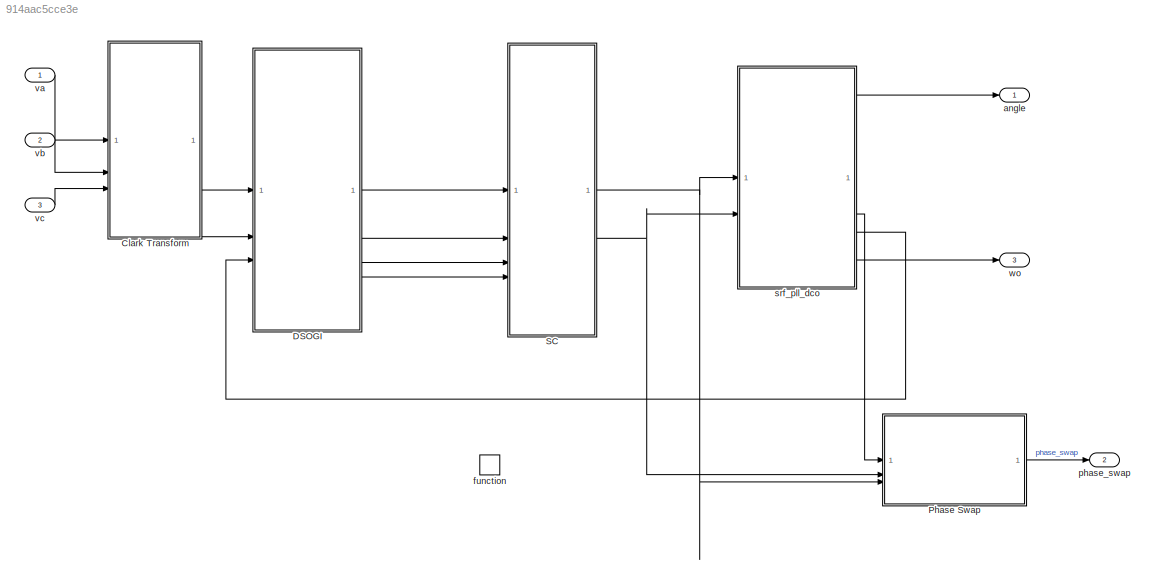
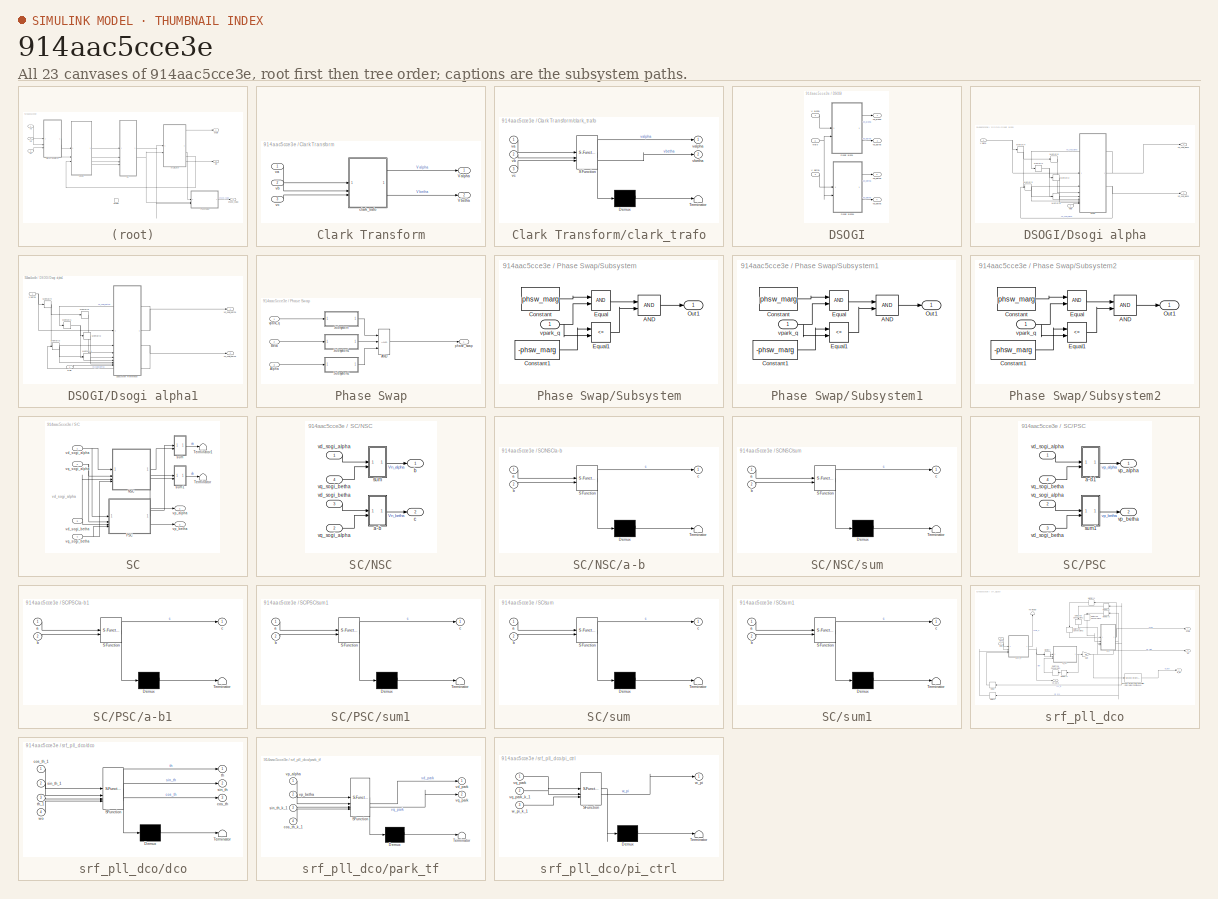
[diagram: thumbnail index - all 23 canvases of the model, root first then tree order]
MODEL slx_914aac5cce3e
KIND model
CONFIG AbsTol = auto
CONFIG EnableMultiTasking = off
CONFIG FixedStep = ts/40
CONFIG InitFcn = ts=1/10e3;\nvolts=230*sqrt(2)*3.3/700;\nfreq=2*pi*50;\nphase=pi;\n\nwn_pi=80*2*pi;%200*2*pi; \nsig_pi=.07;%.05;\nvac_peak_pi=230*sqrt(2)*3.3/350;\nkp =2*wn_pi*sig_pi/vac_peak_pi;\nki = vac_peak_pi/(4*sig_pi*sig_pi);\nsig=2.5;\nwn=2*pi*100;\nKg=1.2;\n\nphsw_marg=.1;\nts_phsw=1/66;
CONFIG MaxStep = auto
CONFIG MinStep = auto
CONFIG RelTol = 1e-3
CONFIG SampleTimeConstraint = Unconstrained
CONFIG SolverName = ode1be
CONFIG StartTime = 0.0
CONFIG StopTime = 10/50
BLOCK [SubSystem] Clark Transform
  SystemSampleTime = ts
BLOCK [Outport] Clark Transform/V alpha
BLOCK [Outport] Clark Transform/V betha
  Port = 2
BLOCK [SubSystem] Clark Transform/clark_trafo
  ErrorFcn = Stateflow.Translate.translate
  LibrarySourceBlock = simulink/User-Defined\nFunctions/MATLAB Function
  PermitHierarchicalResolution = ExplicitOnly
  SFBlockType = MATLAB Function
  TreatAsAtomicUnit = on
BLOCK [Demux] Clark Transform/clark_trafo/ Demux 
  Outputs = 1
BLOCK [S-Function] Clark Transform/clark_trafo/ SFunction 
  EnableBusSupport = on
  FunctionName = sf_sfun
  PortCounts = [3 3]
  SFcnIsStateOwnerBlock = off
  SFunctionDeploymentMode = off
  Tag = Stateflow S-Function 10
BLOCK [Terminator] Clark Transform/clark_trafo/ Terminator 
BLOCK [Inport] Clark Transform/clark_trafo/va
BLOCK [Outport] Clark Transform/clark_trafo/valpha
BLOCK [Inport] Clark Transform/clark_trafo/vb
  Port = 2
BLOCK [Outport] Clark Transform/clark_trafo/vbetha
  Port = 2
BLOCK [Inport] Clark Transform/clark_trafo/vc
  Port = 3
BLOCK [Inport] Clark Transform/va
  OutDataTypeStr = double
BLOCK [Inport] Clark Transform/vb
  OutDataTypeStr = double
  Port = 2
BLOCK [Inport] Clark Transform/vc
  OutDataTypeStr = double
  Port = 3
BLOCK [SubSystem] DSOGI
  SystemSampleTime = ts
BLOCK [SubSystem] DSOGI/Dsogi alpha
BLOCK [Memory] DSOGI/Dsogi alpha/Memory1
  InheritSampleTime = on
BLOCK [Memory] DSOGI/Dsogi alpha/Memory2
  InheritSampleTime = on
BLOCK [Memory] DSOGI/Dsogi alpha/Memory3
  InheritSampleTime = on
BLOCK [Memory] DSOGI/Dsogi alpha/Memory4
  InheritSampleTime = on
BLOCK [Memory] DSOGI/Dsogi alpha/Memory6
  InheritSampleTime = on
BLOCK [Memory] DSOGI/Dsogi alpha/Memory8
  InheritSampleTime = on
BLOCK [Inport] DSOGI/Dsogi alpha/V alpha
  OutDataTypeStr = double
  OutMax = [1.6]
  OutMin = [-1.6]
BLOCK [SubSystem] DSOGI/Dsogi alpha/dsogi
  ReferencedSubsystem = dsogi
BLOCK [Outport] DSOGI/Dsogi alpha/vd_sogi_alpha
  OutMax = [1.6]
  OutMin = [-1.6]
BLOCK [Outport] DSOGI/Dsogi alpha/vq_sogi_alpha
  OutMax = [1.6]
  OutMin = [-1.6]
  Port = 2
BLOCK [Inport] DSOGI/Dsogi alpha/wolp
  OutDataTypeStr = double
  OutMax = [2*pi*65]
  OutMin = [2*pi*45]
  Port = 2
BLOCK [SubSystem] DSOGI/Dsogi alpha1
BLOCK [Memory] DSOGI/Dsogi alpha1/Memory1
  InheritSampleTime = on
BLOCK [Memory] DSOGI/Dsogi alpha1/Memory2
  InheritSampleTime = on
BLOCK [Memory] DSOGI/Dsogi alpha1/Memory3
  InheritSampleTime = on
BLOCK [Memory] DSOGI/Dsogi alpha1/Memory4
  InheritSampleTime = on
BLOCK [Memory] DSOGI/Dsogi alpha1/Memory6
  InheritSampleTime = on
BLOCK [Memory] DSOGI/Dsogi alpha1/Memory8
  InheritSampleTime = on
BLOCK [SubSystem] DSOGI/Dsogi alpha1/Subsystem Reference
  ReferencedSubsystem = dsogi
BLOCK [Inport] DSOGI/Dsogi alpha1/V betha
  OutDataTypeStr = double
  OutMax = [1.6]
  OutMin = [-1.6]
BLOCK [Outport] DSOGI/Dsogi alpha1/vd_sogi_betha
  OutMax = [1.6]
  OutMin = [-1.6]
BLOCK [Outport] DSOGI/Dsogi alpha1/vq_sogi_betha
  OutMax = [1.6]
  OutMin = [-1.6]
  Port = 2
BLOCK [Inport] DSOGI/Dsogi alpha1/wolp
  OutDataTypeStr = double
  OutMax = [2*pi*65]
  OutMin = [2*pi*45]
  Port = 2
BLOCK [Inport] DSOGI/V alpha
  OutDataTypeStr = double
BLOCK [Inport] DSOGI/V betha
  OutDataTypeStr = double
  Port = 2
BLOCK [Outport] DSOGI/vd_alpha
BLOCK [Outport] DSOGI/vd_betha
  Port = 3
BLOCK [Outport] DSOGI/vq_aplha
  Port = 2
BLOCK [Outport] DSOGI/vq_betha
  Port = 4
BLOCK [Inport] DSOGI/wolp
  OutDataTypeStr = double
  Port = 3
BLOCK [SubSystem] Phase Swap
BLOCK [Logic] Phase Swap/AND
  AllPortsSameDT = off
  IconShape = distinctive
  Inputs = 3
  OutDataTypeStr = boolean
BLOCK [Inport] Phase Swap/Alpha
  OutDataTypeStr = double
  Port = 3
BLOCK [Inport] Phase Swap/Beta
  OutDataTypeStr = double
  Port = 2
BLOCK [SubSystem] Phase Swap/Subsystem
BLOCK [Logic] Phase Swap/Subsystem/AND
  AllPortsSameDT = off
  IconShape = distinctive
  OutDataTypeStr = boolean
BLOCK [Constant] Phase Swap/Subsystem/Constant
  OutDataTypeStr = double
  Value = phsw_marg
BLOCK [Constant] Phase Swap/Subsystem/Constant1
  OutDataTypeStr = double
  Value = -phsw_marg
BLOCK [RelationalOperator] Phase Swap/Subsystem/Equal
  InputSameDT = off
  OutDataTypeStr = boolean
  RndMeth = Simplest
BLOCK [RelationalOperator] Phase Swap/Subsystem/Equal1
  InputSameDT = off
  Operator = <=
  OutDataTypeStr = boolean
  RndMeth = Simplest
BLOCK [Outport] Phase Swap/Subsystem/Out1
BLOCK [Inport] Phase Swap/Subsystem/vpark_q
  OutDataTypeStr = double
BLOCK [SubSystem] Phase Swap/Subsystem1
BLOCK [Logic] Phase Swap/Subsystem1/AND
  AllPortsSameDT = off
  IconShape = distinctive
  OutDataTypeStr = boolean
BLOCK [Constant] Phase Swap/Subsystem1/Constant
  OutDataTypeStr = double
  Value = phsw_marg
BLOCK [Constant] Phase Swap/Subsystem1/Constant1
  OutDataTypeStr = double
  Value = -phsw_marg
BLOCK [RelationalOperator] Phase Swap/Subsystem1/Equal
  InputSameDT = off
  OutDataTypeStr = boolean
  RndMeth = Simplest
BLOCK [RelationalOperator] Phase Swap/Subsystem1/Equal1
  InputSameDT = off
  Operator = <=
  OutDataTypeStr = boolean
  RndMeth = Simplest
BLOCK [Outport] Phase Swap/Subsystem1/Out1
BLOCK [Inport] Phase Swap/Subsystem1/vpark_q
  OutDataTypeStr = double
BLOCK [SubSystem] Phase Swap/Subsystem2
BLOCK [Logic] Phase Swap/Subsystem2/AND
  AllPortsSameDT = off
  IconShape = distinctive
  OutDataTypeStr = boolean
BLOCK [Constant] Phase Swap/Subsystem2/Constant
  OutDataTypeStr = double
  Value = phsw_marg
BLOCK [Constant] Phase Swap/Subsystem2/Constant1
  OutDataTypeStr = double
  Value = -phsw_marg
BLOCK [RelationalOperator] Phase Swap/Subsystem2/Equal
  InputSameDT = off
  OutDataTypeStr = boolean
  RndMeth = Simplest
BLOCK [RelationalOperator] Phase Swap/Subsystem2/Equal1
  InputSameDT = off
  Operator = <=
  OutDataTypeStr = boolean
  RndMeth = Simplest
BLOCK [Outport] Phase Swap/Subsystem2/Out1
BLOCK [Inport] Phase Swap/Subsystem2/vpark_q
  OutDataTypeStr = double
BLOCK [Outport] Phase Swap/phase_swap 
BLOCK [Inport] Phase Swap/vpark_q
  OutDataTypeStr = double
BLOCK [SubSystem] SC
  SystemSampleTime = ts
BLOCK [SubSystem] SC/NSC
BLOCK [SubSystem] SC/NSC/a-b
  ErrorFcn = Stateflow.Translate.translate
  LibrarySourceBlock = simulink/User-Defined\nFunctions/MATLAB Function
  PermitHierarchicalResolution = ExplicitOnly
  SFBlockType = MATLAB Function
  TreatAsAtomicUnit = on
  VariantControl = false()
BLOCK [Demux] SC/NSC/a-b/ Demux 
  Outputs = 1
BLOCK [S-Function] SC/NSC/a-b/ SFunction 
  EnableBusSupport = on
  FunctionName = sf_sfun
  PortCounts = [2 2]
  SFcnIsStateOwnerBlock = off
  SFunctionDeploymentMode = off
  Tag = Stateflow S-Function 17
BLOCK [Terminator] SC/NSC/a-b/ Terminator 
BLOCK [Inport] SC/NSC/a-b/a
BLOCK [Inport] SC/NSC/a-b/b
  Port = 2
BLOCK [Outport] SC/NSC/a-b/c
BLOCK [Outport] SC/NSC/b
BLOCK [Outport] SC/NSC/c
  Port = 2
BLOCK [SubSystem] SC/NSC/sum
  ErrorFcn = Stateflow.Translate.translate
  LibrarySourceBlock = simulink/User-Defined\nFunctions/MATLAB Function
  PermitHierarchicalResolution = ExplicitOnly
  SFBlockType = MATLAB Function
  TreatAsAtomicUnit = on
  VariantControl = false()
BLOCK [Demux] SC/NSC/sum/ Demux 
  Outputs = 1
BLOCK [S-Function] SC/NSC/sum/ SFunction 
  EnableBusSupport = on
  FunctionName = sf_sfun
  PortCounts = [2 2]
  SFcnIsStateOwnerBlock = off
  SFunctionDeploymentMode = off
  Tag = Stateflow S-Function 18
BLOCK [Terminator] SC/NSC/sum/ Terminator 
BLOCK [Inport] SC/NSC/sum/a
BLOCK [Inport] SC/NSC/sum/b
  Port = 2
BLOCK [Outport] SC/NSC/sum/c
BLOCK [Inport] SC/NSC/vd_sogi_alpha
  OutDataTypeStr = double
BLOCK [Inport] SC/NSC/vd_sogi_betha
  OutDataTypeStr = double
  Port = 3
BLOCK [Inport] SC/NSC/vq_sogi_alpha
  OutDataTypeStr = double
  Port = 2
BLOCK [Inport] SC/NSC/vq_sogi_betha
  OutDataTypeStr = double
  Port = 4
BLOCK [SubSystem] SC/PSC
BLOCK [SubSystem] SC/PSC/a-b1
  ErrorFcn = Stateflow.Translate.translate
  LibrarySourceBlock = simulink/User-Defined\nFunctions/MATLAB Function
  PermitHierarchicalResolution = ExplicitOnly
  SFBlockType = MATLAB Function
  TreatAsAtomicUnit = on
  VariantControl = false()
BLOCK [Demux] SC/PSC/a-b1/ Demux 
  Outputs = 1
BLOCK [S-Function] SC/PSC/a-b1/ SFunction 
  EnableBusSupport = on
  FunctionName = sf_sfun
  PortCounts = [2 2]
  SFcnIsStateOwnerBlock = off
  SFunctionDeploymentMode = off
  Tag = Stateflow S-Function 19
BLOCK [Terminator] SC/PSC/a-b1/ Terminator 
BLOCK [Inport] SC/PSC/a-b1/a
BLOCK [Inport] SC/PSC/a-b1/b
  Port = 2
BLOCK [Outport] SC/PSC/a-b1/c
BLOCK [SubSystem] SC/PSC/sum1
  ErrorFcn = Stateflow.Translate.translate
  LibrarySourceBlock = simulink/User-Defined\nFunctions/MATLAB Function
  PermitHierarchicalResolution = ExplicitOnly
  SFBlockType = MATLAB Function
  TreatAsAtomicUnit = on
  VariantControl = false()
BLOCK [Demux] SC/PSC/sum1/ Demux 
  Outputs = 1
BLOCK [S-Function] SC/PSC/sum1/ SFunction 
  EnableBusSupport = on
  FunctionName = sf_sfun
  PortCounts = [2 2]
  SFcnIsStateOwnerBlock = off
  SFunctionDeploymentMode = off
  Tag = Stateflow S-Function 20
BLOCK [Terminator] SC/PSC/sum1/ Terminator 
BLOCK [Inport] SC/PSC/sum1/a
BLOCK [Inport] SC/PSC/sum1/b
  Port = 2
BLOCK [Outport] SC/PSC/sum1/c
BLOCK [Inport] SC/PSC/vd_sogi_alpha
  OutDataTypeStr = double
BLOCK [Inport] SC/PSC/vd_sogi_betha
  OutDataTypeStr = double
  Port = 3
BLOCK [Outport] SC/PSC/vp_alpha
BLOCK [Outport] SC/PSC/vp_betha
  Port = 2
BLOCK [Inport] SC/PSC/vq_sogi_alpha
  OutDataTypeStr = double
  Port = 2
BLOCK [Inport] SC/PSC/vq_sogi_betha
  OutDataTypeStr = double
  Port = 4
BLOCK [Terminator] SC/Terminator
BLOCK [Terminator] SC/Terminator1
BLOCK [SubSystem] SC/sum
  ErrorFcn = Stateflow.Translate.translate
  LibrarySourceBlock = simulink/User-Defined\nFunctions/MATLAB Function
  PermitHierarchicalResolution = ExplicitOnly
  SFBlockType = MATLAB Function
  TreatAsAtomicUnit = on
  VariantControl = false()
BLOCK [Demux] SC/sum/ Demux 
  Outputs = 1
BLOCK [S-Function] SC/sum/ SFunction 
  EnableBusSupport = on
  FunctionName = sf_sfun
  PortCounts = [2 2]
  SFcnIsStateOwnerBlock = off
  SFunctionDeploymentMode = off
  Tag = Stateflow S-Function 21
BLOCK [Terminator] SC/sum/ Terminator 
BLOCK [Inport] SC/sum/a
BLOCK [Inport] SC/sum/b
  Port = 2
BLOCK [Outport] SC/sum/c
BLOCK [SubSystem] SC/sum1
  ErrorFcn = Stateflow.Translate.translate
  LibrarySourceBlock = simulink/User-Defined\nFunctions/MATLAB Function
  PermitHierarchicalResolution = ExplicitOnly
  SFBlockType = MATLAB Function
  TreatAsAtomicUnit = on
  VariantControl = false()
BLOCK [Demux] SC/sum1/ Demux 
  Outputs = 1
BLOCK [S-Function] SC/sum1/ SFunction 
  EnableBusSupport = on
  FunctionName = sf_sfun
  PortCounts = [2 2]
  SFcnIsStateOwnerBlock = off
  SFunctionDeploymentMode = off
  Tag = Stateflow S-Function 22
BLOCK [Terminator] SC/sum1/ Terminator 
BLOCK [Inport] SC/sum1/a
BLOCK [Inport] SC/sum1/b
  Port = 2
BLOCK [Outport] SC/sum1/c
BLOCK [Inport] SC/vd_sogi_alpha
  OutDataTypeStr = double
BLOCK [Inport] SC/vd_sogi_betha
  OutDataTypeStr = double
  Port = 3
BLOCK [Outport] SC/vp_alpha
BLOCK [Outport] SC/vp_betha
  Port = 2
BLOCK [Inport] SC/vq_sogi_alpha
  OutDataTypeStr = double
  Port = 2
BLOCK [Inport] SC/vq_sogi_betha
  OutDataTypeStr = double
  Port = 4
BLOCK [Outport] angle
BLOCK [TriggerPort] function
  SampleTime = ts
  SampleTimeType = periodic
  StatesWhenEnabling = held
  TriggerType = function-call
  VariantControl = (inherit)
BLOCK [Outport] phase_swap 
  Port = 2
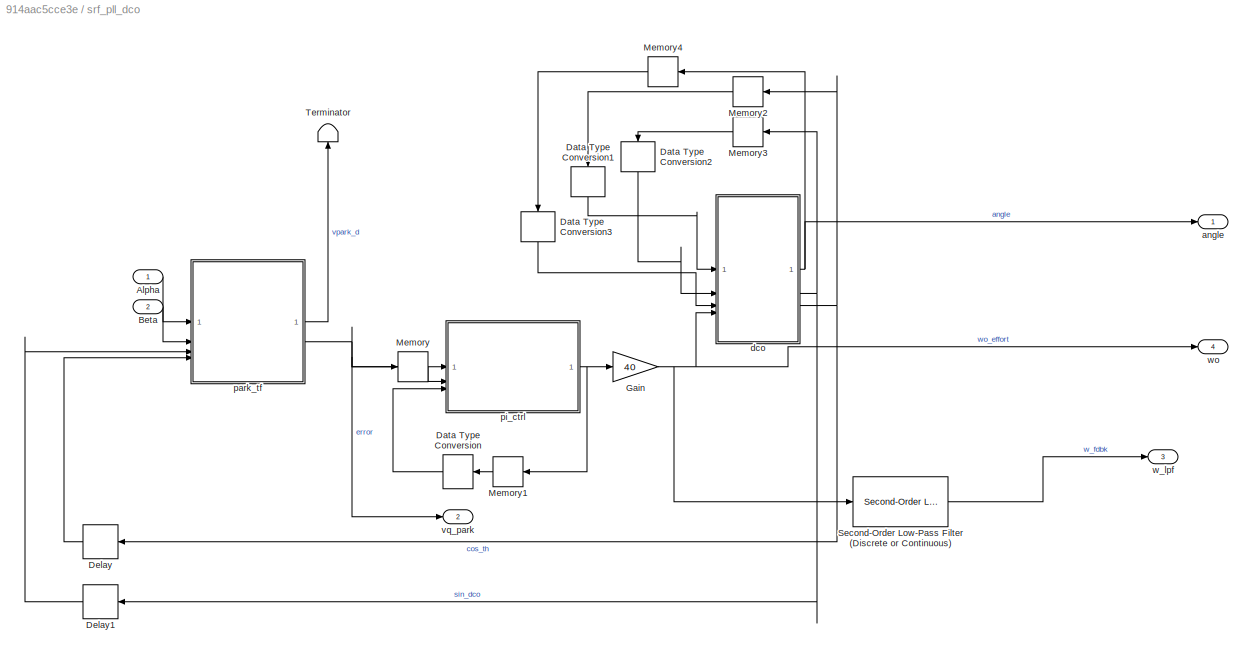
BLOCK [SubSystem] srf_pll_dco
BLOCK [Inport] srf_pll_dco/Alpha
  OutDataTypeStr = double
BLOCK [Inport] srf_pll_dco/Beta
  OutDataTypeStr = double
  Port = 2
BLOCK [DataTypeConversion] srf_pll_dco/Data Type Conversion
  NameLocation = top
  OutDataTypeStr = double
  RndMeth = Floor
  SaturateOnIntegerOverflow = off
BLOCK [DataTypeConversion] srf_pll_dco/Data Type Conversion1
  NameLocation = left
  OutDataTypeStr = double
  RndMeth = Floor
  SaturateOnIntegerOverflow = off
BLOCK [DataTypeConversion] srf_pll_dco/Data Type Conversion2
  NameLocation = left
  OutDataTypeStr = double
  RndMeth = Floor
  SaturateOnIntegerOverflow = off
BLOCK [DataTypeConversion] srf_pll_dco/Data Type Conversion3
  NameLocation = left
  OutDataTypeStr = double
  RndMeth = Floor
  SaturateOnIntegerOverflow = off
BLOCK [Delay] srf_pll_dco/Delay
  DelayLength = 1
  InputPortMap = u0
  NameLocation = top
BLOCK [Delay] srf_pll_dco/Delay1
  DelayLength = 1
  InputPortMap = u0
  NameLocation = top
BLOCK [Gain] srf_pll_dco/Gain
  Gain = 40
BLOCK [Memory] srf_pll_dco/Memory
  InheritSampleTime = on
BLOCK [Memory] srf_pll_dco/Memory1
  InheritSampleTime = on
  NameLocation = top
BLOCK [Memory] srf_pll_dco/Memory2
  InheritSampleTime = on
  InitialCondition = .99
  NameLocation = top
BLOCK [Memory] srf_pll_dco/Memory3
  InheritSampleTime = on
  NameLocation = top
BLOCK [Memory] srf_pll_dco/Memory4
  InheritSampleTime = on
  NameLocation = top
BLOCK [Reference] srf_pll_dco/Second-Order Low-Pass Filter (Discrete or Continuous)  REF=eeGeneralControl/Second-Order
Low-Pass Filter
(Discrete or Continuous)
  LibrarySourceBlock = ee_sl_lib/General Control/Second-Order\nLow-Pass Filter\n(Discrete or Continuous)
  SourceBlock = eeGeneralControl/Second-Order\nLow-Pass Filter\n(Discrete or Continuous)
  SourceType = Second-Order Low-Pass Filter (Discrete or Continuous)
BLOCK [Terminator] srf_pll_dco/Terminator
  NameLocation = right
BLOCK [Outport] srf_pll_dco/angle
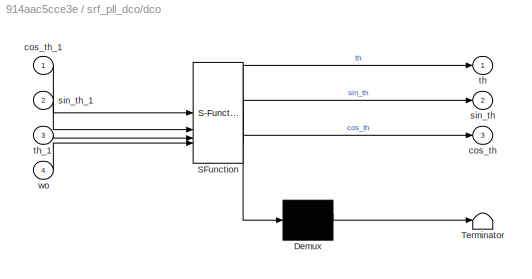
BLOCK [SubSystem] srf_pll_dco/dco
  ErrorFcn = Stateflow.Translate.translate
  LibrarySourceBlock = simulink/User-Defined\nFunctions/MATLAB Function
  PermitHierarchicalResolution = ExplicitOnly
  SFBlockType = MATLAB Function
  TreatAsAtomicUnit = on
  VariantControl = false()
BLOCK [Demux] srf_pll_dco/dco/ Demux 
  Outputs = 1
BLOCK [S-Function] srf_pll_dco/dco/ SFunction 
  EnableBusSupport = on
  FunctionName = sf_sfun
  PortCounts = [4 4]
  SFcnIsStateOwnerBlock = off
  SFunctionDeploymentMode = off
  Tag = Stateflow S-Function 23
BLOCK [Terminator] srf_pll_dco/dco/ Terminator 
BLOCK [Outport] srf_pll_dco/dco/cos_th
  Port = 3
BLOCK [Inport] srf_pll_dco/dco/cos_th_1
BLOCK [Outport] srf_pll_dco/dco/sin_th
  Port = 2
BLOCK [Inport] srf_pll_dco/dco/sin_th_1
  Port = 2
BLOCK [Outport] srf_pll_dco/dco/th
BLOCK [Inport] srf_pll_dco/dco/th_1
  Port = 3
BLOCK [Inport] srf_pll_dco/dco/wo
  Port = 4
BLOCK [SubSystem] srf_pll_dco/park_tf
  ErrorFcn = Stateflow.Translate.translate
  LibrarySourceBlock = simulink/User-Defined\nFunctions/MATLAB Function
  PermitHierarchicalResolution = ExplicitOnly
  SFBlockType = MATLAB Function
  TreatAsAtomicUnit = on
  VariantControl = false()
BLOCK [Demux] srf_pll_dco/park_tf/ Demux 
  Outputs = 1
BLOCK [S-Function] srf_pll_dco/park_tf/ SFunction 
  EnableBusSupport = on
  FunctionName = sf_sfun
  PortCounts = [4 3]
  SFcnIsStateOwnerBlock = off
  SFunctionDeploymentMode = off
  Tag = Stateflow S-Function 24
BLOCK [Terminator] srf_pll_dco/park_tf/ Terminator 
BLOCK [Inport] srf_pll_dco/park_tf/cos_th_k_1
  Port = 4
BLOCK [Inport] srf_pll_dco/park_tf/sin_th_k_1
  Port = 3
BLOCK [Outport] srf_pll_dco/park_tf/vd_park
BLOCK [Inport] srf_pll_dco/park_tf/vp_alpha
BLOCK [Inport] srf_pll_dco/park_tf/vp_betha
  Port = 2
BLOCK [Outport] srf_pll_dco/park_tf/vq_park
  Port = 2
BLOCK [SubSystem] srf_pll_dco/pi_ctrl
  ErrorFcn = Stateflow.Translate.translate
  LibrarySourceBlock = simulink/User-Defined\nFunctions/MATLAB Function
  PermitHierarchicalResolution = ExplicitOnly
  SFBlockType = MATLAB Function
  TreatAsAtomicUnit = on
  VariantControl = false()
BLOCK [Demux] srf_pll_dco/pi_ctrl/ Demux 
  Outputs = 1
BLOCK [S-Function] srf_pll_dco/pi_ctrl/ SFunction 
  EnableBusSupport = on
  FunctionName = sf_sfun
  PortCounts = [3 2]
  SFcnIsStateOwnerBlock = off
  SFunctionDeploymentMode = off
  Tag = Stateflow S-Function 25
BLOCK [Terminator] srf_pll_dco/pi_ctrl/ Terminator 
BLOCK [Inport] srf_pll_dco/pi_ctrl/vq_park
BLOCK [Inport] srf_pll_dco/pi_ctrl/vq_park_k_1
  Port = 2
BLOCK [Outport] srf_pll_dco/pi_ctrl/w_pi
BLOCK [Inport] srf_pll_dco/pi_ctrl/w_pi_k_1
  Port = 3
BLOCK [Outport] srf_pll_dco/vq_park
  Port = 2
BLOCK [Outport] srf_pll_dco/w_lpf
  Port = 3
BLOCK [Outport] srf_pll_dco/wo
  Port = 4
BLOCK [Inport] va
  OutDataTypeStr = double
BLOCK [Inport] vb
  OutDataTypeStr = double
  Port = 2
BLOCK [Inport] vc
  OutDataTypeStr = double
  Port = 3
BLOCK [Outport] wo
  Port = 3
ANNOTATION SC: vd_sogi_alpha
LINE Clark Transform/clark_trafo:1 -> Clark Transform/V alpha:1
LINE Clark Transform/clark_trafo:2 -> Clark Transform/V betha:1
LINE Clark Transform/va:1 -> Clark Transform/clark_trafo:1
LINE Clark Transform/vb:1 -> Clark Transform/clark_trafo:2
LINE Clark Transform/vc:1 -> Clark Transform/clark_trafo:3
LINE Clark Transform:1 -> DSOGI:1
LINE Clark Transform:2 -> DSOGI:2
NET DSOGI/Dsogi alpha/Memory1:1 -> DSOGI/Dsogi alpha/Memory2:1, DSOGI/Dsogi alpha/dsogi:4
LINE DSOGI/Dsogi alpha/Memory2:1 -> DSOGI/Dsogi alpha/dsogi:5
NET DSOGI/Dsogi alpha/Memory3:1 -> DSOGI/Dsogi alpha/Memory8:1, DSOGI/Dsogi alpha/dsogi:6
NET DSOGI/Dsogi alpha/Memory4:1 -> DSOGI/Dsogi alpha/Memory6:1, DSOGI/Dsogi alpha/dsogi:2
LINE DSOGI/Dsogi alpha/Memory6:1 -> DSOGI/Dsogi alpha/dsogi:3
LINE DSOGI/Dsogi alpha/Memory8:1 -> DSOGI/Dsogi alpha/dsogi:7
NET DSOGI/Dsogi alpha/V alpha:1 -> DSOGI/Dsogi alpha/Memory4:1, DSOGI/Dsogi alpha/dsogi:1
NET DSOGI/Dsogi alpha/dsogi:1 -> DSOGI/Dsogi alpha/Memory1:1, DSOGI/Dsogi alpha/vd_sogi_alpha:1
NET DSOGI/Dsogi alpha/dsogi:2 -> DSOGI/Dsogi alpha/Memory3:1, DSOGI/Dsogi alpha/vq_sogi_alpha:1
LINE DSOGI/Dsogi alpha/wolp:1 -> DSOGI/Dsogi alpha/dsogi:8
NET DSOGI/Dsogi alpha1/Memory1:1 -> DSOGI/Dsogi alpha1/Memory2:1, DSOGI/Dsogi alpha1/Subsystem Reference:4
LINE DSOGI/Dsogi alpha1/Memory2:1 -> DSOGI/Dsogi alpha1/Subsystem Reference:5
NET DSOGI/Dsogi alpha1/Memory3:1 -> DSOGI/Dsogi alpha1/Memory8:1, DSOGI/Dsogi alpha1/Subsystem Reference:6
NET DSOGI/Dsogi alpha1/Memory4:1 -> DSOGI/Dsogi alpha1/Memory6:1, DSOGI/Dsogi alpha1/Subsystem Reference:2
LINE DSOGI/Dsogi alpha1/Memory6:1 -> DSOGI/Dsogi alpha1/Subsystem Reference:3
LINE DSOGI/Dsogi alpha1/Memory8:1 -> DSOGI/Dsogi alpha1/Subsystem Reference:7
NET DSOGI/Dsogi alpha1/Subsystem Reference:1 -> DSOGI/Dsogi alpha1/Memory1:1, DSOGI/Dsogi alpha1/vd_sogi_betha:1
NET DSOGI/Dsogi alpha1/Subsystem Reference:2 -> DSOGI/Dsogi alpha1/Memory3:1, DSOGI/Dsogi alpha1/vq_sogi_betha:1
NET DSOGI/Dsogi alpha1/V betha:1 -> DSOGI/Dsogi alpha1/Memory4:1, DSOGI/Dsogi alpha1/Subsystem Reference:1
LINE DSOGI/Dsogi alpha1/wolp:1 -> DSOGI/Dsogi alpha1/Subsystem Reference:8
LINE DSOGI/Dsogi alpha1:1 -> DSOGI/vd_betha:1
LINE DSOGI/Dsogi alpha1:2 -> DSOGI/vq_betha:1
LINE DSOGI/Dsogi alpha:1 -> DSOGI/vd_alpha:1
LINE DSOGI/Dsogi alpha:2 -> DSOGI/vq_aplha:1
LINE DSOGI/V alpha:1 -> DSOGI/Dsogi alpha:1
LINE DSOGI/V betha:1 -> DSOGI/Dsogi alpha1:1
NET DSOGI/wolp:1 -> DSOGI/Dsogi alpha1:2, DSOGI/Dsogi alpha:2
LINE DSOGI:1 -> SC:1
LINE DSOGI:2 -> SC:2
LINE DSOGI:3 -> SC:3
LINE DSOGI:4 -> SC:4
LINE Phase Swap/AND:1 -> Phase Swap/phase_swap :1
LINE Phase Swap/Alpha:1 -> Phase Swap/Subsystem2:1
LINE Phase Swap/Beta:1 -> Phase Swap/Subsystem1:1
LINE Phase Swap/Subsystem/AND:1 -> Phase Swap/Subsystem/Out1:1
LINE Phase Swap/Subsystem/Constant1:1 -> Phase Swap/Subsystem/Equal1:1
LINE Phase Swap/Subsystem/Constant:1 -> Phase Swap/Subsystem/Equal:1
LINE Phase Swap/Subsystem/Equal1:1 -> Phase Swap/Subsystem/AND:2
LINE Phase Swap/Subsystem/Equal:1 -> Phase Swap/Subsystem/AND:1
NET Phase Swap/Subsystem/vpark_q:1 -> Phase Swap/Subsystem/Equal1:2, Phase Swap/Subsystem/Equal:2
LINE Phase Swap/Subsystem1/AND:1 -> Phase Swap/Subsystem1/Out1:1
LINE Phase Swap/Subsystem1/Constant1:1 -> Phase Swap/Subsystem1/Equal1:1
LINE Phase Swap/Subsystem1/Constant:1 -> Phase Swap/Subsystem1/Equal:1
LINE Phase Swap/Subsystem1/Equal1:1 -> Phase Swap/Subsystem1/AND:2
LINE Phase Swap/Subsystem1/Equal:1 -> Phase Swap/Subsystem1/AND:1
NET Phase Swap/Subsystem1/vpark_q:1 -> Phase Swap/Subsystem1/Equal1:2, Phase Swap/Subsystem1/Equal:2
LINE Phase Swap/Subsystem1:1 -> Phase Swap/AND:2
LINE Phase Swap/Subsystem2/AND:1 -> Phase Swap/Subsystem2/Out1:1
LINE Phase Swap/Subsystem2/Constant1:1 -> Phase Swap/Subsystem2/Equal1:1
LINE Phase Swap/Subsystem2/Constant:1 -> Phase Swap/Subsystem2/Equal:1
LINE Phase Swap/Subsystem2/Equal1:1 -> Phase Swap/Subsystem2/AND:2
LINE Phase Swap/Subsystem2/Equal:1 -> Phase Swap/Subsystem2/AND:1
NET Phase Swap/Subsystem2/vpark_q:1 -> Phase Swap/Subsystem2/Equal1:2, Phase Swap/Subsystem2/Equal:2
LINE Phase Swap/Subsystem2:1 -> Phase Swap/AND:3
LINE Phase Swap/Subsystem:1 -> Phase Swap/AND:1
LINE Phase Swap/vpark_q:1 -> Phase Swap/Subsystem:1
LINE Phase Swap:1 -> phase_swap :1
LINE SC/NSC/a-b:1 -> SC/NSC/c:1
LINE SC/NSC/sum:1 -> SC/NSC/b:1
LINE SC/NSC/vd_sogi_alpha:1 -> SC/NSC/sum:1
LINE SC/NSC/vd_sogi_betha:1 -> SC/NSC/a-b:1
LINE SC/NSC/vq_sogi_alpha:1 -> SC/NSC/a-b:2
LINE SC/NSC/vq_sogi_betha:1 -> SC/NSC/sum:2
LINE SC/NSC:1 -> SC/sum:2
LINE SC/NSC:2 -> SC/sum1:2
LINE SC/PSC/a-b1:1 -> SC/PSC/vp_alpha:1
LINE SC/PSC/sum1:1 -> SC/PSC/vp_betha:1
LINE SC/PSC/vd_sogi_alpha:1 -> SC/PSC/a-b1:1
LINE SC/PSC/vd_sogi_betha:1 -> SC/PSC/sum1:2
LINE SC/PSC/vq_sogi_alpha:1 -> SC/PSC/sum1:1
LINE SC/PSC/vq_sogi_betha:1 -> SC/PSC/a-b1:2
NET SC/PSC:1 -> SC/sum:1, SC/vp_alpha:1
NET SC/PSC:2 -> SC/sum1:1, SC/vp_betha:1
LINE SC/sum1:1 -> SC/Terminator:1
LINE SC/sum:1 -> SC/Terminator1:1
NET SC/vd_sogi_alpha:1 -> SC/NSC:1, SC/PSC:1
NET SC/vd_sogi_betha:1 -> SC/NSC:3, SC/PSC:3
NET SC/vq_sogi_alpha:1 -> SC/NSC:2, SC/PSC:2
NET SC/vq_sogi_betha:1 -> SC/NSC:4, SC/PSC:4
NET SC:1 -> Phase Swap:3, srf_pll_dco:1
NET SC:2 -> Phase Swap:2, srf_pll_dco:2
LINE srf_pll_dco/Alpha:1 -> srf_pll_dco/park_tf:1
LINE srf_pll_dco/Beta:1 -> srf_pll_dco/park_tf:2
LINE srf_pll_dco/Data Type Conversion1:1 -> srf_pll_dco/dco:1
LINE srf_pll_dco/Data Type Conversion2:1 -> srf_pll_dco/dco:2
LINE srf_pll_dco/Data Type Conversion3:1 -> srf_pll_dco/dco:3
LINE srf_pll_dco/Data Type Conversion:1 -> srf_pll_dco/pi_ctrl:3
LINE srf_pll_dco/Delay1:1 -> srf_pll_dco/park_tf:3
LINE srf_pll_dco/Delay:1 -> srf_pll_dco/park_tf:4
NET srf_pll_dco/Gain:1 -> srf_pll_dco/Second-Order Low-Pass Filter (Discrete or Continuous):1, srf_pll_dco/dco:4, srf_pll_dco/wo:1
LINE srf_pll_dco/Memory1:1 -> srf_pll_dco/Data Type Conversion:1
LINE srf_pll_dco/Memory2:1 -> srf_pll_dco/Data Type Conversion1:1
LINE srf_pll_dco/Memory3:1 -> srf_pll_dco/Data Type Conversion2:1
LINE srf_pll_dco/Memory4:1 -> srf_pll_dco/Data Type Conversion3:1
LINE srf_pll_dco/Memory:1 -> srf_pll_dco/pi_ctrl:2
LINE srf_pll_dco/Second-Order Low-Pass Filter (Discrete or Continuous):1 -> srf_pll_dco/w_lpf:1
NET srf_pll_dco/dco:1 -> srf_pll_dco/Memory4:1, srf_pll_dco/angle:1
NET srf_pll_dco/dco:2 -> srf_pll_dco/Delay1:1, srf_pll_dco/Memory3:1
NET srf_pll_dco/dco:3 -> srf_pll_dco/Delay:1, srf_pll_dco/Memory2:1
LINE srf_pll_dco/park_tf:1 -> srf_pll_dco/Terminator:1
NET srf_pll_dco/park_tf:2 -> srf_pll_dco/Memory:1, srf_pll_dco/pi_ctrl:1, srf_pll_dco/vq_park:1
NET srf_pll_dco/pi_ctrl:1 -> srf_pll_dco/Gain:1, srf_pll_dco/Memory1:1
LINE srf_pll_dco:1 -> angle:1
LINE srf_pll_dco:2 -> Phase Swap:1
LINE srf_pll_dco:3 -> DSOGI:3
LINE srf_pll_dco:4 -> wo:1
LINE va:1 -> Clark Transform:1
LINE vb:1 -> Clark Transform:2
LINE vc:1 -> Clark Transform:3
note: NET lines group one-source signal fan-out (src -> all destinations, sorted); 1:1 wires keep LINE
CHART Clark Transform/clark_trafo states=1 transitions=1
  STATE_LABEL 'eML_blk_kernel()'
  STATE_LABEL 'SCRIPT:\nfunction [valpha, vbetha] = clarktrans(va,vb,vc)\n\n\nvalpha=((2/3)*(va-(.5*vb)-(.5*vc)));\nvbetha=( ((2/3)*(sqrt(3)*.5))*(vb-vc) );\n\nend\n\n'
CHART SC/NSC/a-b states=1 transitions=1
  STATE_LABEL 'eML_blk_kernel()'
  STATE_LABEL 'SCRIPT:\nfunction c = fcn(a,b)\n\nc=0.5*(a-b);\nend'
CHART SC/NSC/sum states=1 transitions=1
  STATE_LABEL 'eML_blk_kernel()'
  STATE_LABEL 'SCRIPT:\nfunction c = fcn(a,b)\n\nc=0.5*(a+b);\nend'
CHART SC/PSC/a-b1 states=1 transitions=1
  STATE_LABEL 'eML_blk_kernel()'
  STATE_LABEL 'SCRIPT:\nfunction c = fcn(a,b)\n\nc=0.5*(a-b);\nend'
CHART SC/PSC/sum1 states=1 transitions=1
  STATE_LABEL 'eML_blk_kernel()'
  STATE_LABEL 'SCRIPT:\nfunction c = fcn(a,b)\n\nc=0.5*(a+b);\nend'
CHART SC/sum states=1 transitions=1
  STATE_LABEL 'eML_blk_kernel()'
  STATE_LABEL 'SCRIPT:\nfunction c = fcn(a,b)\n\nc=(a-b);\nend'
CHART SC/sum1 states=1 transitions=1
  STATE_LABEL 'eML_blk_kernel()'
  STATE_LABEL 'SCRIPT:\nfunction c = fcn(a,b)\n\nc=(a-b);\nend'
CHART srf_pll_dco/dco states=1 transitions=1
  STATE_LABEL 'eML_blk_kernel()'
  STATE_LABEL 'SCRIPT:\nfunction [th,sin_th,cos_th]= dco(cos_th_1,sin_th_1,th_1,wo)\n        % ws=(2*pi*50);\n        wout=(wo);\n        tsample=1/10e3;\n        %Sin is for showing the overlaping w the input \n        sin_th=sin_th_1+(cos_th_1*wout*tsample);%Sin(t+dt)=sin(t)+cos(t)*dt\n        cos_th=cos_th_1-(sin_th_1*wout*tsample);\n        \n        sin_th=max([sin_th -1]);\n        cos_th=max([cos_th -1]);\n\n        ...<+223ch>'
CHART srf_pll_dco/park_tf states=1 transitions=1
  STATE_LABEL 'eML_blk_kernel()'
  STATE_LABEL 'SCRIPT:\n function [vd_park,vq_park] = park(vp_alpha,vp_betha,sin_th_k_1,cos_th_k_1)\n\nvq_park=(sin_th_k_1*vp_betha+cos_th_k_1*vp_alpha);%(-sin_th_k_1*vp_alpha+cos_th_k_1*vp_betha);\nvd_park=(sin_th_k_1*vp_alpha-cos_th_k_1*vp_betha);\n\n\n\n\nend\n'
CHART srf_pll_dco/pi_ctrl states=1 transitions=1
  STATE_LABEL 'eML_blk_kernel()'
  STATE_LABEL 'SCRIPT:\nfunction w_pi = pi_ctrl(vq_park,vq_park_k_1,w_pi_k_1)\n\nfs=10e3;ts=1/fs;\nwn_pi=100*2*pi;%200*2*pi; \nsig_pi=.09;%.05;\nvac_peak_pi=.3*3.3;\n\nkp =2*wn_pi*sig_pi/vac_peak_pi;\nki = vac_peak_pi/(4*sig_pi*sig_pi);\n\npi_n1=kp;\npi_n2=(ki*ts)-kp;\nsat=285;\nw_pi=((vq_park)*pi_n1+(vq_park_k_1)*pi_n2+w_pi_k_1);\nif (w_pi*40)>sat*2*pi\n    w_pi=2*85*pi;\nend\nif (w_pi*40)<-sat*2*pi\n    w_pi=-2*85*pi;\nend\n\nend'
CHART  states=0 transitions=0
CHART  states=0 transitions=0
CHART  states=0 transitions=0
CHART  states=0 transitions=0
CHART  states=0 transitions=0
CHART  states=0 transitions=0
CHART  states=0 transitions=0
CHART  states=0 transitions=0
CHART  states=0 transitions=0
CHART  states=0 transitions=0
